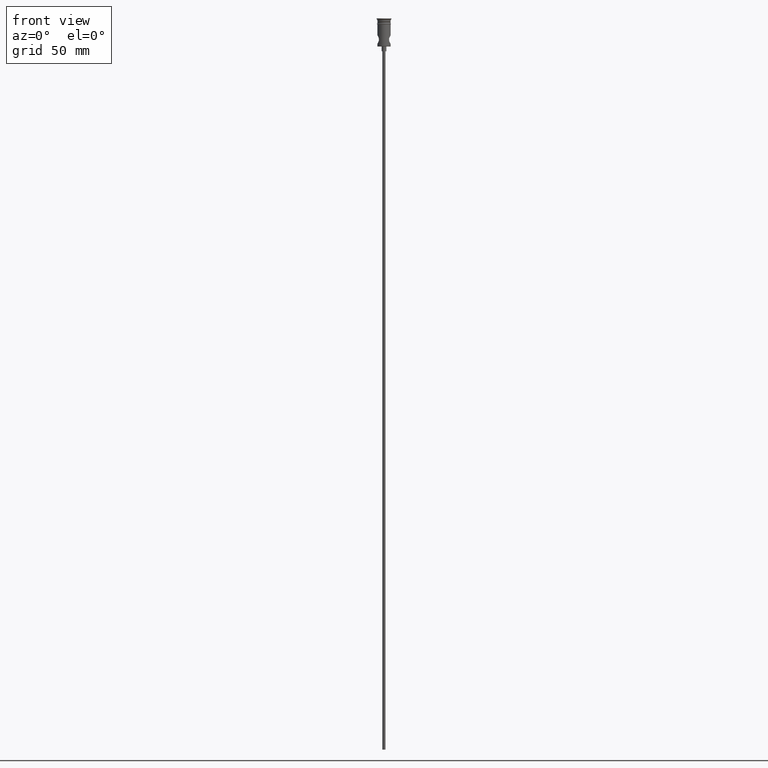
[diagram: clean part render]
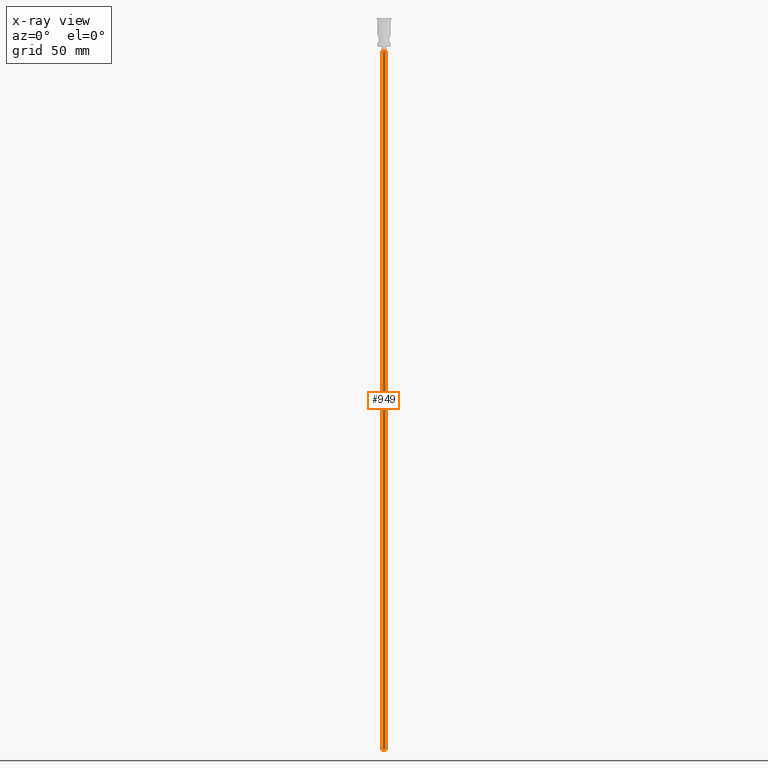
[diagram: x-ray — body ghosted, one internal face saturated and labeled with its STEP entity id]
A machine part, front view, then the same camera in x-ray: the body is ghosted and one INTERNAL B-rep face — a face not visible from any outside direction — is saturated and labeled: STEP entity #949.
In plain terms, the highlighted cylindrical surface (edge-blend (fillet) strip) has radius 1 mm, axis along (-0, -0, 1).
Its self-contained STEP definition (entity closure, byte-faithful):
#23 = AXIS2_PLACEMENT_3D ( 'NONE', #228, #783, #885 ) ;
#64 = VECTOR ( 'NONE', #534, 1000.000000000000000 ) ;
#100 = CARTESIAN_POINT ( 'NONE',  ( -0.9999999999999997780, 1.224646799147352961E-16, -468.0000000000000000 ) ) ;
#110 = EDGE_CURVE ( 'NONE', #807, #1031, #404, .T. ) ;
#123 = AXIS2_PLACEMENT_3D ( 'NONE', #1017, #1370, #397 ) ;
#160 = AXIS2_PLACEMENT_3D ( 'NONE', #1338, #1244, #596 ) ;
#228 = CARTESIAN_POINT ( 'NONE',  ( 0.000000000000000000, 0.000000000000000000, -20.99999999999999645 ) ) ;
#264 = EDGE_CURVE ( 'NONE', #1031, #580, #1348, .T. ) ;
#316 = DIRECTION ( 'NONE',  ( -0.000000000000000000, -0.000000000000000000, 1.000000000000000000 ) ) ;
#361 = EDGE_CURVE ( 'NONE', #807, #871, #847, .T. ) ;
#397 = DIRECTION ( 'NONE',  ( 1.000000000000000000, 0.000000000000000000, 0.000000000000000000 ) ) ;
#404 = LINE ( 'NONE', #100, #64 ) ;
#534 = DIRECTION ( 'NONE',  ( -0.000000000000000000, -0.000000000000000000, 1.000000000000000000 ) ) ;
#564 = EDGE_LOOP ( 'NONE', ( #1307, #590, #1228, #1115 ) ) ;
#580 = VERTEX_POINT ( 'NONE', #641 ) ;
#590 = ORIENTED_EDGE ( 'NONE', *, *, #110, .T. ) ;
#596 = DIRECTION ( 'NONE',  ( -1.000000000000000000, 0.000000000000000000, 0.000000000000000000 ) ) ;
#641 = CARTESIAN_POINT ( 'NONE',  ( 0.9999999999999997780, 0.000000000000000000, -20.99999999999999645 ) ) ;
#730 = FACE_OUTER_BOUND ( 'NONE', #564, .T. ) ;
#783 = DIRECTION ( 'NONE',  ( 0.000000000000000000, 0.000000000000000000, -1.000000000000000000 ) ) ;
#807 = VERTEX_POINT ( 'NONE', #1077 ) ;
#847 = CIRCLE ( 'NONE', #160, 0.9999999999999997780 ) ;
#859 = CARTESIAN_POINT ( 'NONE',  ( 0.9999999999999997780, 0.000000000000000000, -468.0000000000000000 ) ) ;
#864 = CARTESIAN_POINT ( 'NONE',  ( 0.9999999999999997780, 0.000000000000000000, -468.0000000000000000 ) ) ;
#871 = VERTEX_POINT ( 'NONE', #864 ) ;
#885 = DIRECTION ( 'NONE',  ( -1.000000000000000000, 0.000000000000000000, 0.000000000000000000 ) ) ;
#949 = ADVANCED_FACE ( 'NONE', ( #730 ), #1039, .T. ) ;
#963 = CARTESIAN_POINT ( 'NONE',  ( -0.9999999999999997780, 1.224646799147352961E-16, -20.99999999999999645 ) ) ;
#1017 = CARTESIAN_POINT ( 'NONE',  ( 0.000000000000000000, 0.000000000000000000, -468.0000000000000000 ) ) ;
#1031 = VERTEX_POINT ( 'NONE', #963 ) ;
#1039 = CYLINDRICAL_SURFACE ( 'NONE', #123, 0.9999999999999997780 ) ;
#1077 = CARTESIAN_POINT ( 'NONE',  ( -0.9999999999999997780, 1.224646799147352961E-16, -468.0000000000000000 ) ) ;
#1078 = LINE ( 'NONE', #859, #1254 ) ;
#1115 = ORIENTED_EDGE ( 'NONE', *, *, #1335, .F. ) ;
#1228 = ORIENTED_EDGE ( 'NONE', *, *, #264, .T. ) ;
#1244 = DIRECTION ( 'NONE',  ( 0.000000000000000000, 0.000000000000000000, -1.000000000000000000 ) ) ;
#1254 = VECTOR ( 'NONE', #316, 1000.000000000000000 ) ;
#1307 = ORIENTED_EDGE ( 'NONE', *, *, #361, .F. ) ;
#1335 = EDGE_CURVE ( 'NONE', #871, #580, #1078, .T. ) ;
#1338 = CARTESIAN_POINT ( 'NONE',  ( 0.000000000000000000, 0.000000000000000000, -468.0000000000000000 ) ) ;
#1348 = CIRCLE ( 'NONE', #23, 0.9999999999999997780 ) ;
#1370 = DIRECTION ( 'NONE',  ( -0.000000000000000000, -0.000000000000000000, 1.000000000000000000 ) ) ;